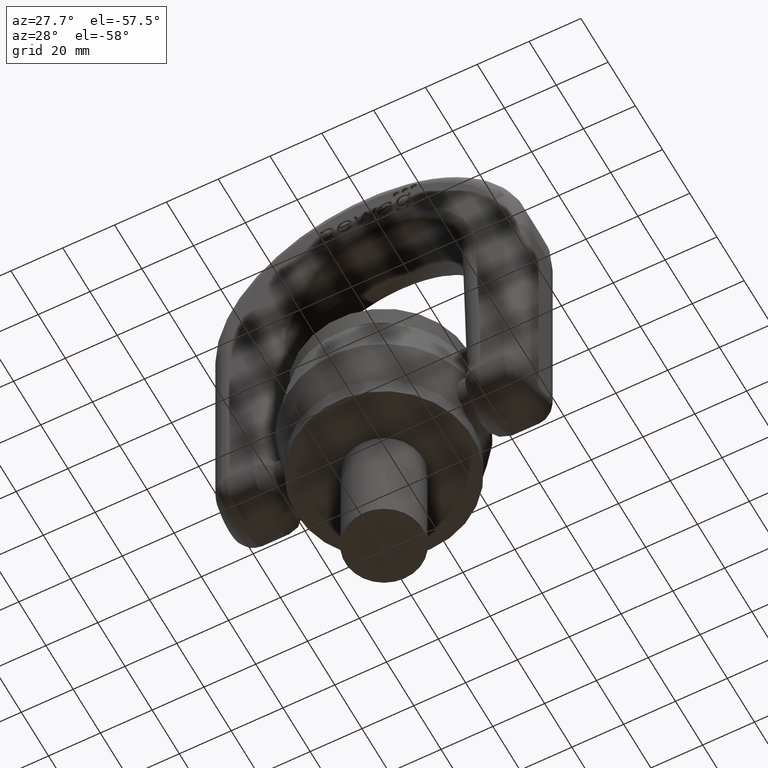
[diagram: clean part render]
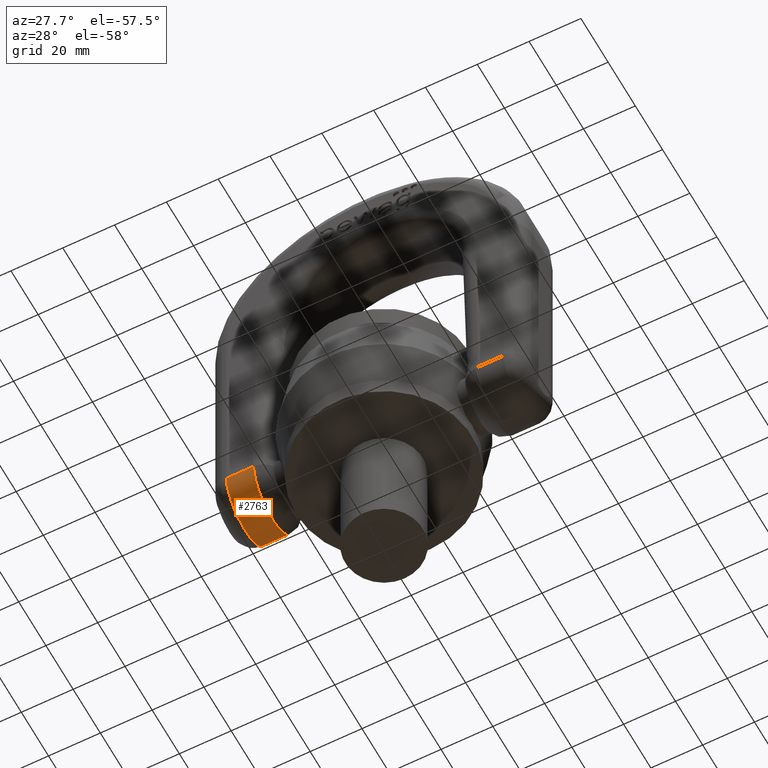
[diagram: same view with one face highlighted and labeled with its STEP entity id]
A machine part, auxiliary view. The second image highlights one B-rep face of the part: STEP entity #2763.
In plain terms, the highlighted cylindrical surface (partial cylindrical patch) has radius 14 mm, axis along (-1, 0, 0).
Its self-contained STEP definition (entity closure, byte-faithful):
#320=B_SPLINE_CURVE_WITH_KNOTS('',3,(#6715,#6716,#6717,#6718,#6719,#6720,
#6721,#6722,#6723,#6724),.UNSPECIFIED.,.F.,.F.,(4,2,2,2,4),(0.,0.25,0.5,
0.75,1.),.UNSPECIFIED.);
#1793=LINE('',#6712,#2075);
#1794=LINE('',#6726,#2076);
#2075=VECTOR('',#5914,1.);
#2076=VECTOR('',#5915,1.);
#2426=FACE_OUTER_BOUND('',#3096,.T.);
#2763=ADVANCED_FACE('',(#2426),#2983,.T.);
#2983=CYLINDRICAL_SURFACE('',#5636,13.9999999999999);
#3096=EDGE_LOOP('',(#3431,#3432,#3433,#3434));
#3431=ORIENTED_EDGE('',*,*,#4991,.F.);
#3432=ORIENTED_EDGE('',*,*,#4992,.T.);
#3433=ORIENTED_EDGE('',*,*,#4993,.F.);
#3434=ORIENTED_EDGE('',*,*,#4994,.T.);
#4579=VERTEX_POINT('',#6713);
#4580=VERTEX_POINT('',#6714);
#4581=VERTEX_POINT('',#6725);
#4582=VERTEX_POINT('',#6727);
#4991=EDGE_CURVE('',#4579,#4580,#1793,.T.);
#4992=EDGE_CURVE('',#4579,#4581,#320,.T.);
#4993=EDGE_CURVE('',#4582,#4581,#1794,.T.);
#4994=EDGE_CURVE('',#4582,#4580,#5554,.T.);
#5554=CIRCLE('',#5635,13.9999999999999);
#5635=AXIS2_PLACEMENT_3D('',#6728,#5916,#5917);
#5636=AXIS2_PLACEMENT_3D('',#6729,#5918,#5919);
#5914=DIRECTION('',(-1.,2.34291072916505E-15,1.11825149691067E-15));
#5915=DIRECTION('',(1.,0.,-1.11825149691067E-15));
#5916=DIRECTION('',(1.,0.,-9.29954853100969E-16));
#5917=DIRECTION('',(-9.91270557701038E-16,0.,-1.));
#5918=DIRECTION('',(-1.,1.17559772752147E-15,1.11825149691067E-15));
#5919=DIRECTION('',(-9.91270557701038E-16,-1.,0.));
#6712=CARTESIAN_POINT('',(-5.72184952929981E-14,14.,17.5));
#6713=CARTESIAN_POINT('',(-42.9328327841079,14.0000000000001,17.5000000000001));
#6714=CARTESIAN_POINT('',(-53.5,14.0000000000001,17.5000000000001));
#6715=CARTESIAN_POINT('',(-42.9328327841079,14.,17.5000000000001));
#6716=CARTESIAN_POINT('',(-42.9968523607535,14.,13.8027573978497));
#6717=CARTESIAN_POINT('',(-43.0590034281136,12.4808070179668,10.1801636567435));
#6718=CARTESIAN_POINT('',(-43.147210992837,7.31184247152389,5.014508116081));
#6719=CARTESIAN_POINT('',(-43.1728830333275,3.68893595873363,3.4994916483845));
#6720=CARTESIAN_POINT('',(-43.1728657658105,-3.69279347351737,3.50050861733755));
#6721=CARTESIAN_POINT('',(-43.1471528205244,-7.31526636265919,5.01791493442756));
#6722=CARTESIAN_POINT('',(-43.0590606255232,-12.4774402559912,10.1768139311493));
#6723=CARTESIAN_POINT('',(-42.9968523605429,-13.9999999999999,13.8027574100099));
#6724=CARTESIAN_POINT('',(-42.9328327841079,-13.9999999999999,17.5000000000001));
#6725=CARTESIAN_POINT('',(-42.9328327841079,-14.,17.5000000000001));
#6726=CARTESIAN_POINT('',(-9.00192455013088E-14,-14.,17.5));
#6727=CARTESIAN_POINT('',(-53.5,-14.,17.5000000000001));
#6728=CARTESIAN_POINT('',(-53.5,6.28944784223988E-14,17.5000000000001));
#6729=CARTESIAN_POINT('',(60.5000000000001,-7.11236625150491E-14,17.4999999999999));